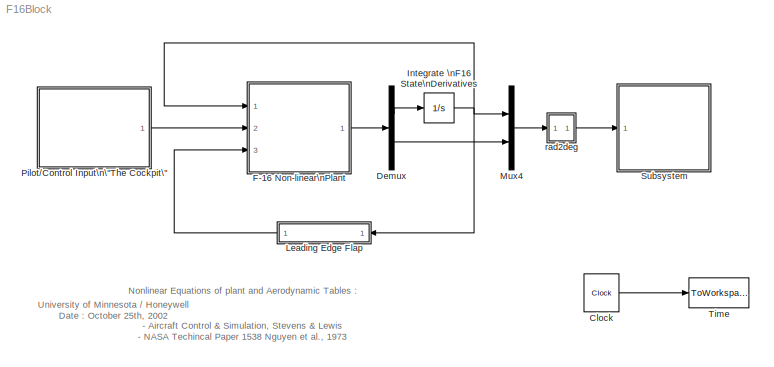
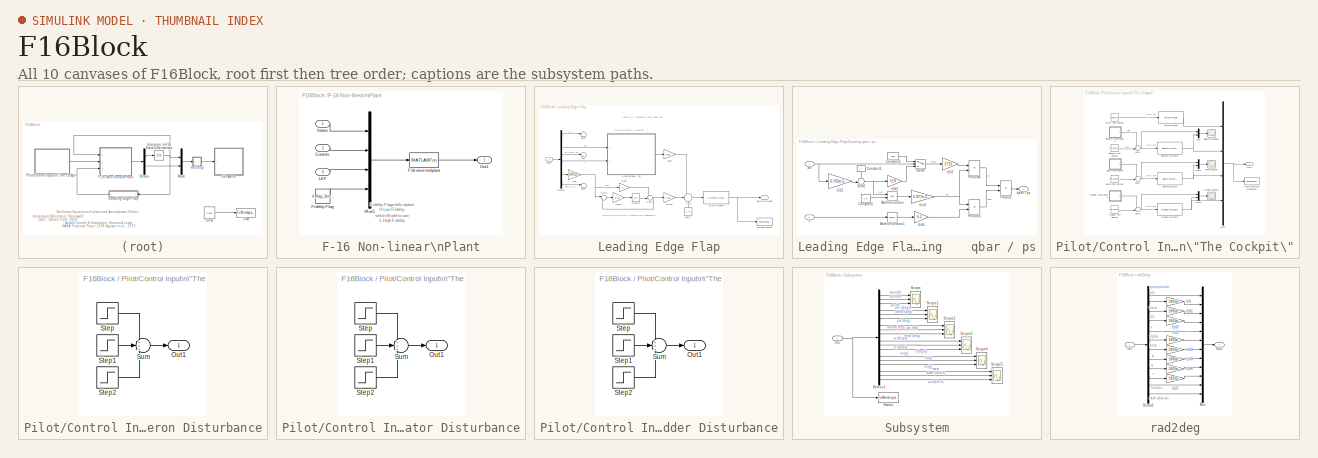
[diagram: thumbnail index - all 10 canvases of the model, root first then tree order]
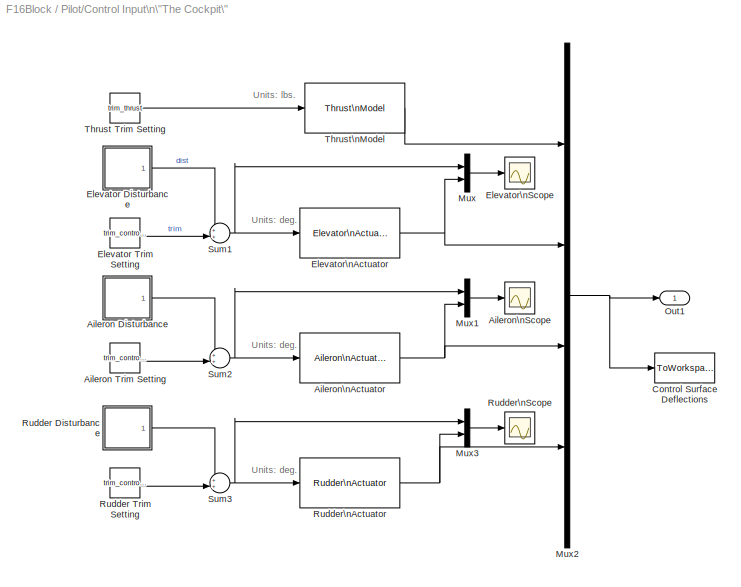
MODEL F16Block
KIND model
CONFIG AbsTol = auto
CONFIG FixedStep = delta_T
CONFIG MaxStep = auto
CONFIG MinStep = auto
CONFIG RelTol = 1e-3
CONFIG Solver = ode5
CONFIG SolverMode = Auto
CONFIG StartTime = 0.0
CONFIG StopTime = 30
BLOCK [Clock] Clock
  Decimation = 50
  DisplayTime = on
BLOCK [Demux] Demux
  Outputs = [12 6]
  Ports = [1, 2]
BLOCK [SubSystem] F-16 Non-linear\nPlant
  MaskDisplay = image(imread('f16thumb.jpg'))
  MaskIconFrame = on
  MaskIconOpaque = on
  MaskIconRotate = none
  MaskIconUnits = autoscale
  Ports = [3, 1]
  TreatAsAtomicUnit = off
BLOCK [Inport] F-16 Non-linear\nPlant/Controls
  Port = 2
BLOCK [MATLABFcn] F-16 Non-linear\nPlant/F16 nlsim\nnlplant
  MATLABFcn = nlplant
  OutputDimensions = 18
  OutputSignalType = real
BLOCK [Constant] F-16 Non-linear\nPlant/Fidelity Flag
  Value = fi_flag_Simulink
BLOCK [Inport] F-16 Non-linear\nPlant/LEF
  Port = 3
BLOCK [Mux] F-16 Non-linear\nPlant/Mux5
  DisplayOption = bar
  Inputs = [12 4 1 1]
  Ports = [4, 1]
BLOCK [Outport] F-16 Non-linear\nPlant/Out1
BLOCK [Inport] F-16 Non-linear\nPlant/States
BLOCK [Integrator] Integrate \nF16 State\nDerivatives
  InitialCondition = trim_state
  Ports = [1, 1]
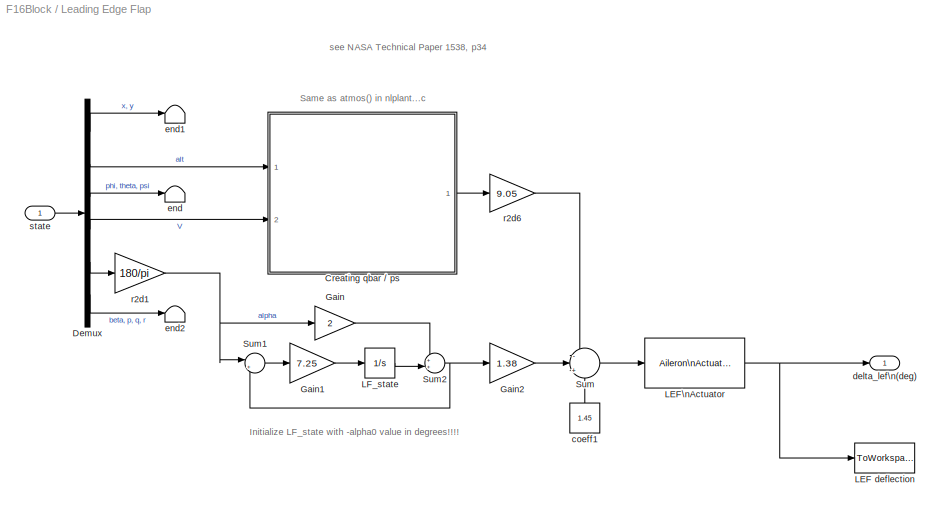
BLOCK [SubSystem] Leading Edge Flap
  Ports = [1, 1]
  TreatAsAtomicUnit = off
BLOCK [SubSystem] Leading Edge Flap/Creating    qbar // ps
  Ports = [2, 1]
  TreatAsAtomicUnit = off
BLOCK [Constant] Leading Edge Flap/Creating    qbar // ps/Constant2
BLOCK [Constant] Leading Edge Flap/Creating    qbar // ps/Constant3
  Value = 390
BLOCK [Constant] Leading Edge Flap/Creating    qbar // ps/Constant6
  Value = 4.14
BLOCK [Math] Leading Edge Flap/Creating    qbar // ps/Math\nFunction
  Operator = pow
  Ports = [2, 1]
BLOCK [Math] Leading Edge Flap/Creating    qbar // ps/Math\nFunction1
  Operator = square
  Ports = [1, 1]
BLOCK [Product] Leading Edge Flap/Creating    qbar // ps/Product
  Inputs = /*
  Ports = [2, 1]
BLOCK [Product] Leading Edge Flap/Creating    qbar // ps/Product5
  Inputs = **
  Ports = [2, 1]
BLOCK [Product] Leading Edge Flap/Creating    qbar // ps/Product6
  Inputs = **
  Ports = [2, 1]
BLOCK [Sum] Leading Edge Flap/Creating    qbar // ps/Sum3
  IconShape = round
  Inputs = +-|
  Ports = [2, 1]
BLOCK [Switch] Leading Edge Flap/Creating    qbar // ps/Switch
  Threshold = 35000
BLOCK [Inport] Leading Edge Flap/Creating    qbar // ps/V
  Port = 2
BLOCK [Inport] Leading Edge Flap/Creating    qbar // ps/alt
BLOCK [Outport] Leading Edge Flap/Creating    qbar // ps/qbar // ps
BLOCK [Gain] Leading Edge Flap/Creating    qbar // ps/r2d2
  Gain = 0.703e-5
BLOCK [Gain] Leading Edge Flap/Creating    qbar // ps/r2d3
  Gain = 519
BLOCK [Gain] Leading Edge Flap/Creating    qbar // ps/r2d4
  Gain = 0.5
BLOCK [Gain] Leading Edge Flap/Creating    qbar // ps/r2d5
  Gain = 1715
BLOCK [Gain] Leading Edge Flap/Creating    qbar // ps/rho0
  Gain = 2.377e-3
BLOCK [Demux] Leading Edge Flap/Demux
  Outputs = [2,1,3,1,1,4]
  Ports = [1, 6]
BLOCK [Gain] Leading Edge Flap/Gain
  Gain = 2
BLOCK [Gain] Leading Edge Flap/Gain1
  Gain = 7.25
BLOCK [Gain] Leading Edge Flap/Gain2
  Gain = 1.38
BLOCK [ToWorkspace] Leading Edge Flap/LEF deflection
  Decimation = 100
  MaxDataPoints = inf
  SampleTime = -1
  SaveFormat = Array
  VariableName = d_LF
BLOCK [Reference] Leading Edge Flap/LEF\nActuator  REF=F16_Actuator_Library/Aileron\nActuator
  DataTypeOverride = UseLocalSettings
  MinMaxOverflowLogging = UseLocalSettings
  Permissions = ReadWrite
  Ports = [1, 1]
  RTWFcnNameOpts = Auto
  RTWFileNameOpts = Auto
  RTWSystemCode = Auto
  ShowPortLabels = on
  SimViewingDevice = off
  SourceBlock = F16_Actuator_Library/Aileron\nActuator
  SourceType = SubSystem
  TreatAsAtomicUnit = off
BLOCK [Integrator] Leading Edge Flap/LF_state
  InitialCondition = -trim_state(8)*180/pi
  Ports = [1, 1]
BLOCK [Sum] Leading Edge Flap/Sum
  IconShape = round
  Inputs = -|+|+
  Ports = [3, 1]
BLOCK [Sum] Leading Edge Flap/Sum1
  IconShape = round
  Inputs = |+-
  Ports = [2, 1]
BLOCK [Sum] Leading Edge Flap/Sum2
  IconShape = round
  Inputs = ++|
  Ports = [2, 1]
BLOCK [Constant] Leading Edge Flap/coeff1
  Value = 1.45
BLOCK [Outport] Leading Edge Flap/delta_lef\n(deg)
BLOCK [Terminator] Leading Edge Flap/end
BLOCK [Terminator] Leading Edge Flap/end1
BLOCK [Terminator] Leading Edge Flap/end2
BLOCK [Gain] Leading Edge Flap/r2d1
  Gain = 180/pi
BLOCK [Gain] Leading Edge Flap/r2d6
  Gain = 9.05
BLOCK [Inport] Leading Edge Flap/state
BLOCK [Mux] Mux4
  DisplayOption = bar
  Inputs = 2
  Ports = [2, 1]
BLOCK [SubSystem] Pilot//Control Input\n\"The Cockpit\"
  MaskDisplay = image(imread('f16cockpit.jpg'))
  MaskIconFrame = on
  MaskIconOpaque = on
  MaskIconRotate = none
  MaskIconUnits = autoscale
  Ports = [0, 1]
  TreatAsAtomicUnit = off
BLOCK [SubSystem] Pilot//Control Input\n\"The Cockpit\"/Aileron Disturbance
  Ports = [0, 1]
  TreatAsAtomicUnit = off
BLOCK [Outport] Pilot//Control Input\n\"The Cockpit\"/Aileron Disturbance/Out1
BLOCK [Step] Pilot//Control Input\n\"The Cockpit\"/Aileron Disturbance/Step
  After = DisAil_1
  SampleTime = 0
BLOCK [Step] Pilot//Control Input\n\"The Cockpit\"/Aileron Disturbance/Step1
  After = DisAil_2
  SampleTime = 0
  Time = 3
BLOCK [Step] Pilot//Control Input\n\"The Cockpit\"/Aileron Disturbance/Step2
  After = DisAil_3
  SampleTime = 0
  Time = 5
BLOCK [Sum] Pilot//Control Input\n\"The Cockpit\"/Aileron Disturbance/Sum
  IconShape = round
  Inputs = +++
  Ports = [3, 1]
BLOCK [Constant] Pilot//Control Input\n\"The Cockpit\"/Aileron Trim Setting
  Value = trim_control(2)
BLOCK [Reference] Pilot//Control Input\n\"The Cockpit\"/Aileron\nActuator  REF=F16_Actuator_Library/Aileron\nActuator
  DataTypeOverride = UseLocalSettings
  MinMaxOverflowLogging = UseLocalSettings
  Permissions = ReadWrite
  Ports = [1, 1]
  RTWFcnNameOpts = Auto
  RTWFileNameOpts = Auto
  RTWSystemCode = Auto
  ShowPortLabels = on
  SimViewingDevice = off
  SourceBlock = F16_Actuator_Library/Aileron\nActuator
  SourceType = SubSystem
  TreatAsAtomicUnit = off
BLOCK [Scope] Pilot//Control Input\n\"The Cockpit\"/Aileron\nScope
  DataFormat = StructureWithTime
  NumInputPorts = 1
  Ports = [1]
  SaveName = ScopeData7
  TimeRange = 30
BLOCK [ToWorkspace] Pilot//Control Input\n\"The Cockpit\"/Control Surface Deflections
  Decimation = 100
  MaxDataPoints = inf
  SampleTime = -1
  SaveFormat = Array
  VariableName = surfaces
BLOCK [SubSystem] Pilot//Control Input\n\"The Cockpit\"/Elevator Disturbance
  Ports = [0, 1]
  TreatAsAtomicUnit = off
BLOCK [Outport] Pilot//Control Input\n\"The Cockpit\"/Elevator Disturbance/Out1
BLOCK [Step] Pilot//Control Input\n\"The Cockpit\"/Elevator Disturbance/Step
  After = DisEle_1
  SampleTime = 0
BLOCK [Step] Pilot//Control Input\n\"The Cockpit\"/Elevator Disturbance/Step1
  After = DisEle_2
  SampleTime = 0
  Time = 3
BLOCK [Step] Pilot//Control Input\n\"The Cockpit\"/Elevator Disturbance/Step2
  After = DisEle_3
  SampleTime = 0
  Time = 5
BLOCK [Sum] Pilot//Control Input\n\"The Cockpit\"/Elevator Disturbance/Sum
  IconShape = round
  Inputs = +++
  Ports = [3, 1]
BLOCK [Constant] Pilot//Control Input\n\"The Cockpit\"/Elevator Trim Setting
  Value = trim_control(1)
  VectorParams1D = off
BLOCK [Reference] Pilot//Control Input\n\"The Cockpit\"/Elevator\nActuator  REF=F16_Actuator_Library/Elevator\nActuator
  DataTypeOverride = UseLocalSettings
  MinMaxOverflowLogging = UseLocalSettings
  Permissions = ReadWrite
  Ports = [1, 1]
  RTWFcnNameOpts = Auto
  RTWFileNameOpts = Auto
  RTWSystemCode = Auto
  ShowPortLabels = on
  SimViewingDevice = off
  SourceBlock = F16_Actuator_Library/Elevator\nActuator
  SourceType = SubSystem
  TreatAsAtomicUnit = off
BLOCK [Scope] Pilot//Control Input\n\"The Cockpit\"/Elevator\nScope
  DataFormat = StructureWithTime
  LimitDataPoints = off
  NumInputPorts = 1
  Ports = [1]
  SaveName = ScopeData6
  TimeRange = 5
  YMax = -2.33766
  YMin = -2.58372
BLOCK [Mux] Pilot//Control Input\n\"The Cockpit\"/Mux
  DisplayOption = bar
  Inputs = 2
  Ports = [2, 1]
BLOCK [Mux] Pilot//Control Input\n\"The Cockpit\"/Mux1
  DisplayOption = bar
  Inputs = 2
  Ports = [2, 1]
BLOCK [Mux] Pilot//Control Input\n\"The Cockpit\"/Mux2
  DisplayOption = bar
  Ports = [4, 1]
BLOCK [Mux] Pilot//Control Input\n\"The Cockpit\"/Mux3
  DisplayOption = bar
  Inputs = 2
  Ports = [2, 1]
BLOCK [Outport] Pilot//Control Input\n\"The Cockpit\"/Out1
BLOCK [SubSystem] Pilot//Control Input\n\"The Cockpit\"/Rudder Disturbance
  Ports = [0, 1]
  TreatAsAtomicUnit = off
BLOCK [Outport] Pilot//Control Input\n\"The Cockpit\"/Rudder Disturbance/Out1
BLOCK [Step] Pilot//Control Input\n\"The Cockpit\"/Rudder Disturbance/Step
  After = DisRud_1
  SampleTime = 0
BLOCK [Step] Pilot//Control Input\n\"The Cockpit\"/Rudder Disturbance/Step1
  After = DisRud_2
  SampleTime = 0
  Time = 3
BLOCK [Step] Pilot//Control Input\n\"The Cockpit\"/Rudder Disturbance/Step2
  After = DisRud_3
  SampleTime = 0
  Time = 5
BLOCK [Sum] Pilot//Control Input\n\"The Cockpit\"/Rudder Disturbance/Sum
  IconShape = round
  Inputs = +++
  Ports = [3, 1]
BLOCK [Constant] Pilot//Control Input\n\"The Cockpit\"/Rudder Trim Setting
  Value = trim_control(3)
BLOCK [Reference] Pilot//Control Input\n\"The Cockpit\"/Rudder\nActuator  REF=F16_Actuator_Library/Rudder\nActuator
  DataTypeOverride = UseLocalSettings
  MinMaxOverflowLogging = UseLocalSettings
  Permissions = ReadWrite
  Ports = [1, 1]
  RTWFcnNameOpts = Auto
  RTWFileNameOpts = Auto
  RTWSystemCode = Auto
  ShowPortLabels = on
  SimViewingDevice = off
  SourceBlock = F16_Actuator_Library/Rudder\nActuator
  SourceType = SubSystem
  TreatAsAtomicUnit = off
BLOCK [Scope] Pilot//Control Input\n\"The Cockpit\"/Rudder\nScope
  DataFormat = StructureWithTime
  NumInputPorts = 1
  Ports = [1]
  SaveName = ScopeData8
BLOCK [Sum] Pilot//Control Input\n\"The Cockpit\"/Sum1
  IconShape = round
  Inputs = ++|
  Ports = [2, 1]
BLOCK [Sum] Pilot//Control Input\n\"The Cockpit\"/Sum2
  IconShape = round
  Inputs = ++|
  Ports = [2, 1]
BLOCK [Sum] Pilot//Control Input\n\"The Cockpit\"/Sum3
  IconShape = round
  Inputs = ++|
  Ports = [2, 1]
BLOCK [Constant] Pilot//Control Input\n\"The Cockpit\"/Thrust Trim Setting
  Value = trim_thrust
BLOCK [Reference] Pilot//Control Input\n\"The Cockpit\"/Thrust\nModel  REF=F16_Actuator_Library/Thrust\nModel
  AncestorBlock = F16_Actuator_Library/Rudder\nActuator
  DataTypeOverride = UseLocalSettings
  MinMaxOverflowLogging = UseLocalSettings
  Permissions = ReadWrite
  Ports = [1, 1]
  RTWFcnNameOpts = Auto
  RTWFileNameOpts = Auto
  RTWSystemCode = Auto
  ShowPortLabels = on
  SimViewingDevice = off
  SourceBlock = F16_Actuator_Library/Thrust\nModel
  SourceType = SubSystem
  TreatAsAtomicUnit = off
BLOCK [SubSystem] Subsystem
  MaskDisplay = image(imread('f16output.jpg'))
  MaskIconFrame = on
  MaskIconOpaque = on
  MaskIconRotate = none
  MaskIconUnits = pixels
  Ports = [1]
  TreatAsAtomicUnit = off
BLOCK [Demux] Subsystem/Demux1
  Outputs = 18
  Ports = [1, 18]
BLOCK [Inport] Subsystem/In1
BLOCK [Scope] Subsystem/Scope
  DataFormat = StructureWithTime
  Decimation = 20
  LimitDataPoints = off
  NumInputPorts = 3
  Ports = [3]
  YMax = 13700~8.75e-11~13320
  YMin = 12100~6e-11~13235
BLOCK [Scope] Subsystem/Scope1
  DataFormat = StructureWithTime
  Decimation = 20
  LimitDataPoints = off
  NumInputPorts = 3
  Ports = [3]
  SaveName = ScopeData1
  TimeRange = 10
  YMax = 0.143~3.21105~-0.245
  YMin = 0.126~3.2103~-0.32
BLOCK [Scope] Subsystem/Scope2
  DataFormat = StructureWithTime
  Decimation = 20
  LimitDataPoints = off
  NumInputPorts = 3
  Ports = [3]
  SaveName = ScopeData2
  YMax = 484.5~0.1255~7.5e-16
  YMin = 478~0.12~2e-16
  ZoomMode = xonly
BLOCK [Scope] Subsystem/Scope3
  DataFormat = StructureWithTime
  Decimation = 20
  LimitDataPoints = off
  NumInputPorts = 3
  Ports = [3]
  SaveName = ScopeData3
  YMax = 5~5~5
  YMin = -5~-5~-5
BLOCK [Scope] Subsystem/Scope4
  DataFormat = StructureWithTime
  Decimation = 20
  LimitDataPoints = off
  NumInputPorts = 3
  Ports = [3]
  SaveName = ScopeData4
  YMax = 5~5~5
  YMin = -5~-5~-5
BLOCK [Scope] Subsystem/Scope5
  DataFormat = StructureWithTime
  NumInputPorts = 3
  Ports = [3]
  SaveName = ScopeData5
  YMax = 0.459182~241.108~1.05
  YMin = 0.459181~241.107~0.95
BLOCK [ToWorkspace] Subsystem/States
  Decimation = 100
  MaxDataPoints = inf
  SampleTime = -1
  SaveFormat = Array
  VariableName = y_sim
BLOCK [ToWorkspace] Time
  Decimation = 100
  MaxDataPoints = inf
  SampleTime = -1
  SaveFormat = Array
  VariableName = T
BLOCK [SubSystem] rad2deg
  Ports = [1, 1]
  TreatAsAtomicUnit = off
BLOCK [Demux] rad2deg/Demux1
  Outputs = [3 1 1 1 1 1 1 1 1 1 3 3]
  Ports = [1, 12]
BLOCK [Inport] rad2deg/In1
BLOCK [Mux] rad2deg/Mux
  DisplayOption = bar
  Inputs = [3 1 1 1 1 1 1 1 1 1 3 3]
  Ports = [12, 1]
BLOCK [Outport] rad2deg/Out1
BLOCK [Gain] rad2deg/r2d
  Gain = 180/pi
BLOCK [Gain] rad2deg/r2d1
  Gain = 180/pi
BLOCK [Gain] rad2deg/r2d2
  Gain = 180/pi
BLOCK [Gain] rad2deg/r2d3
  Gain = 180/pi
BLOCK [Gain] rad2deg/r2d4
  Gain = 180/pi
BLOCK [Gain] rad2deg/r2d5
  Gain = 180/pi
BLOCK [Gain] rad2deg/r2d6
  Gain = 180/pi
BLOCK [Gain] rad2deg/r2d7
  Gain = 180/pi
ANNOTATION (root): Nonlinear Equations of plant and Aerodynamic Tables :\n- Aircraft Control & Simulation, Stevens & Lewis\n- NASA Techincal Paper 1538 Nguyen et al., 1973
ANNOTATION (root): University of Minnesota / Honeywell\nDate : October 25th, 2002
ANNOTATION F-16 Non-linear\nPlant: Fidelity Flage tells nlplant \nwhich Model to use:\n0: Low Fidelity\n1: High Fidelity
ANNOTATION Leading Edge Flap: Initialize LF_state with -alpha0 value in degrees!!!!
ANNOTATION Leading Edge Flap: Same as atmos() in nlplant...c
ANNOTATION Leading Edge Flap: see NASA Technical Paper 1538, p34
ANNOTATION Pilot//Control Input\n\"The Cockpit\": Units: deg.
ANNOTATION Pilot//Control Input\n\"The Cockpit\": Units: lbs.
ANNOTATION rad2deg: alpha
ANNOTATION rad2deg: beta
ANNOTATION rad2deg: mach,qbar,ps
ANNOTATION rad2deg: npos,epos,alt
ANNOTATION rad2deg: nx,ny,nz
ANNOTATION rad2deg: p
ANNOTATION rad2deg: phi
ANNOTATION rad2deg: psi
ANNOTATION rad2deg: q
ANNOTATION rad2deg: r
ANNOTATION rad2deg: theta
ANNOTATION rad2deg: v
LINE Clock:1 -> Time:1
LINE Demux:1 -> Integrate \nF16 State\nDerivatives:1
LINE Demux:2 -> Mux4:2
LINE F-16 Non-linear\nPlant/Controls:1 -> F-16 Non-linear\nPlant/Mux5:2
LINE F-16 Non-linear\nPlant/F16 nlsim\nnlplant:1 -> F-16 Non-linear\nPlant/Out1:1
LINE F-16 Non-linear\nPlant/Fidelity Flag:1 -> F-16 Non-linear\nPlant/Mux5:4
LINE F-16 Non-linear\nPlant/LEF:1 -> F-16 Non-linear\nPlant/Mux5:3
LINE F-16 Non-linear\nPlant/Mux5:1 -> F-16 Non-linear\nPlant/F16 nlsim\nnlplant:1
LINE F-16 Non-linear\nPlant/States:1 -> F-16 Non-linear\nPlant/Mux5:1
LINE F-16 Non-linear\nPlant:1 -> Demux:1
NET Integrate \nF16 State\nDerivatives:1 -> F-16 Non-linear\nPlant:1, Leading Edge Flap:1, Mux4:1
LINE Leading Edge Flap/Creating    qbar // ps/Constant2:1 -> Leading Edge Flap/Creating    qbar // ps/Sum3:1
LINE Leading Edge Flap/Creating    qbar // ps/Constant3:1 -> Leading Edge Flap/Creating    qbar // ps/Switch:1
LINE Leading Edge Flap/Creating    qbar // ps/Constant6:1 -> Leading Edge Flap/Creating    qbar // ps/Math\nFunction:2
LINE Leading Edge Flap/Creating    qbar // ps/Math\nFunction1:1 -> Leading Edge Flap/Creating    qbar // ps/r2d4:1
LINE Leading Edge Flap/Creating    qbar // ps/Math\nFunction:1 -> Leading Edge Flap/Creating    qbar // ps/rho0:1
LINE Leading Edge Flap/Creating    qbar // ps/Product5:1 -> Leading Edge Flap/Creating    qbar // ps/Product:2
LINE Leading Edge Flap/Creating    qbar // ps/Product6:1 -> Leading Edge Flap/Creating    qbar // ps/Product:1
LINE Leading Edge Flap/Creating    qbar // ps/Product:1 -> Leading Edge Flap/Creating    qbar // ps/qbar // ps:1
NET Leading Edge Flap/Creating    qbar // ps/Sum3:1 -> Leading Edge Flap/Creating    qbar // ps/Math\nFunction:1, Leading Edge Flap/Creating    qbar // ps/r2d3:1
LINE Leading Edge Flap/Creating    qbar // ps/Switch:1 -> Leading Edge Flap/Creating    qbar // ps/r2d5:1
LINE Leading Edge Flap/Creating    qbar // ps/V:1 -> Leading Edge Flap/Creating    qbar // ps/Math\nFunction1:1
NET Leading Edge Flap/Creating    qbar // ps/alt:1 -> Leading Edge Flap/Creating    qbar // ps/Switch:2, Leading Edge Flap/Creating    qbar // ps/r2d2:1
LINE Leading Edge Flap/Creating    qbar // ps/r2d2:1 -> Leading Edge Flap/Creating    qbar // ps/Sum3:2
LINE Leading Edge Flap/Creating    qbar // ps/r2d3:1 -> Leading Edge Flap/Creating    qbar // ps/Switch:3
LINE Leading Edge Flap/Creating    qbar // ps/r2d4:1 -> Leading Edge Flap/Creating    qbar // ps/Product5:2
LINE Leading Edge Flap/Creating    qbar // ps/r2d5:1 -> Leading Edge Flap/Creating    qbar // ps/Product6:1
NET Leading Edge Flap/Creating    qbar // ps/rho0:1 -> Leading Edge Flap/Creating    qbar // ps/Product5:1, Leading Edge Flap/Creating    qbar // ps/Product6:2
LINE Leading Edge Flap/Creating    qbar // ps:1 -> Leading Edge Flap/r2d6:1
LINE Leading Edge Flap/Demux:1 -> Leading Edge Flap/end1:1
LINE Leading Edge Flap/Demux:2 -> Leading Edge Flap/Creating    qbar // ps:1
LINE Leading Edge Flap/Demux:3 -> Leading Edge Flap/end:1
LINE Leading Edge Flap/Demux:4 -> Leading Edge Flap/Creating    qbar // ps:2
LINE Leading Edge Flap/Demux:5 -> Leading Edge Flap/r2d1:1
LINE Leading Edge Flap/Demux:6 -> Leading Edge Flap/end2:1
LINE Leading Edge Flap/Gain1:1 -> Leading Edge Flap/LF_state:1
LINE Leading Edge Flap/Gain2:1 -> Leading Edge Flap/Sum:2
LINE Leading Edge Flap/Gain:1 -> Leading Edge Flap/Sum2:1
NET Leading Edge Flap/LEF\nActuator:1 -> Leading Edge Flap/LEF deflection:1, Leading Edge Flap/delta_lef\n(deg):1
LINE Leading Edge Flap/LF_state:1 -> Leading Edge Flap/Sum2:2
LINE Leading Edge Flap/Sum1:1 -> Leading Edge Flap/Gain1:1
NET Leading Edge Flap/Sum2:1 -> Leading Edge Flap/Gain2:1, Leading Edge Flap/Sum1:2
LINE Leading Edge Flap/Sum:1 -> Leading Edge Flap/LEF\nActuator:1
LINE Leading Edge Flap/coeff1:1 -> Leading Edge Flap/Sum:3
NET Leading Edge Flap/r2d1:1 -> Leading Edge Flap/Gain:1, Leading Edge Flap/Sum1:1
LINE Leading Edge Flap/r2d6:1 -> Leading Edge Flap/Sum:1
LINE Leading Edge Flap/state:1 -> Leading Edge Flap/Demux:1
LINE Leading Edge Flap:1 -> F-16 Non-linear\nPlant:3
LINE Mux4:1 -> rad2deg:1
LINE Pilot//Control Input\n\"The Cockpit\"/Aileron Disturbance/Step1:1 -> Pilot//Control Input\n\"The Cockpit\"/Aileron Disturbance/Sum:2
LINE Pilot//Control Input\n\"The Cockpit\"/Aileron Disturbance/Step2:1 -> Pilot//Control Input\n\"The Cockpit\"/Aileron Disturbance/Sum:3
LINE Pilot//Control Input\n\"The Cockpit\"/Aileron Disturbance/Step:1 -> Pilot//Control Input\n\"The Cockpit\"/Aileron Disturbance/Sum:1
LINE Pilot//Control Input\n\"The Cockpit\"/Aileron Disturbance/Sum:1 -> Pilot//Control Input\n\"The Cockpit\"/Aileron Disturbance/Out1:1
LINE Pilot//Control Input\n\"The Cockpit\"/Aileron Disturbance:1 -> Pilot//Control Input\n\"The Cockpit\"/Sum2:1
LINE Pilot//Control Input\n\"The Cockpit\"/Aileron Trim Setting:1 -> Pilot//Control Input\n\"The Cockpit\"/Sum2:2
NET Pilot//Control Input\n\"The Cockpit\"/Aileron\nActuator:1 -> Pilot//Control Input\n\"The Cockpit\"/Mux1:2, Pilot//Control Input\n\"The Cockpit\"/Mux2:3
LINE Pilot//Control Input\n\"The Cockpit\"/Elevator Disturbance/Step1:1 -> Pilot//Control Input\n\"The Cockpit\"/Elevator Disturbance/Sum:2
LINE Pilot//Control Input\n\"The Cockpit\"/Elevator Disturbance/Step2:1 -> Pilot//Control Input\n\"The Cockpit\"/Elevator Disturbance/Sum:3
LINE Pilot//Control Input\n\"The Cockpit\"/Elevator Disturbance/Step:1 -> Pilot//Control Input\n\"The Cockpit\"/Elevator Disturbance/Sum:1
LINE Pilot//Control Input\n\"The Cockpit\"/Elevator Disturbance/Sum:1 -> Pilot//Control Input\n\"The Cockpit\"/Elevator Disturbance/Out1:1
LINE Pilot//Control Input\n\"The Cockpit\"/Elevator Disturbance:1 -> Pilot//Control Input\n\"The Cockpit\"/Sum1:1
LINE Pilot//Control Input\n\"The Cockpit\"/Elevator Trim Setting:1 -> Pilot//Control Input\n\"The Cockpit\"/Sum1:2
NET Pilot//Control Input\n\"The Cockpit\"/Elevator\nActuator:1 -> Pilot//Control Input\n\"The Cockpit\"/Mux2:2, Pilot//Control Input\n\"The Cockpit\"/Mux:2
LINE Pilot//Control Input\n\"The Cockpit\"/Mux1:1 -> Pilot//Control Input\n\"The Cockpit\"/Aileron\nScope:1
NET Pilot//Control Input\n\"The Cockpit\"/Mux2:1 -> Pilot//Control Input\n\"The Cockpit\"/Control Surface Deflections:1, Pilot//Control Input\n\"The Cockpit\"/Out1:1
LINE Pilot//Control Input\n\"The Cockpit\"/Mux3:1 -> Pilot//Control Input\n\"The Cockpit\"/Rudder\nScope:1
LINE Pilot//Control Input\n\"The Cockpit\"/Mux:1 -> Pilot//Control Input\n\"The Cockpit\"/Elevator\nScope:1
LINE Pilot//Control Input\n\"The Cockpit\"/Rudder Disturbance/Step1:1 -> Pilot//Control Input\n\"The Cockpit\"/Rudder Disturbance/Sum:2
LINE Pilot//Control Input\n\"The Cockpit\"/Rudder Disturbance/Step2:1 -> Pilot//Control Input\n\"The Cockpit\"/Rudder Disturbance/Sum:3
LINE Pilot//Control Input\n\"The Cockpit\"/Rudder Disturbance/Step:1 -> Pilot//Control Input\n\"The Cockpit\"/Rudder Disturbance/Sum:1
LINE Pilot//Control Input\n\"The Cockpit\"/Rudder Disturbance/Sum:1 -> Pilot//Control Input\n\"The Cockpit\"/Rudder Disturbance/Out1:1
LINE Pilot//Control Input\n\"The Cockpit\"/Rudder Disturbance:1 -> Pilot//Control Input\n\"The Cockpit\"/Sum3:1
LINE Pilot//Control Input\n\"The Cockpit\"/Rudder Trim Setting:1 -> Pilot//Control Input\n\"The Cockpit\"/Sum3:2
NET Pilot//Control Input\n\"The Cockpit\"/Rudder\nActuator:1 -> Pilot//Control Input\n\"The Cockpit\"/Mux2:4, Pilot//Control Input\n\"The Cockpit\"/Mux3:2
NET Pilot//Control Input\n\"The Cockpit\"/Sum1:1 -> Pilot//Control Input\n\"The Cockpit\"/Elevator\nActuator:1, Pilot//Control Input\n\"The Cockpit\"/Mux:1
NET Pilot//Control Input\n\"The Cockpit\"/Sum2:1 -> Pilot//Control Input\n\"The Cockpit\"/Aileron\nActuator:1, Pilot//Control Input\n\"The Cockpit\"/Mux1:1
NET Pilot//Control Input\n\"The Cockpit\"/Sum3:1 -> Pilot//Control Input\n\"The Cockpit\"/Mux3:1, Pilot//Control Input\n\"The Cockpit\"/Rudder\nActuator:1
LINE Pilot//Control Input\n\"The Cockpit\"/Thrust Trim Setting:1 -> Pilot//Control Input\n\"The Cockpit\"/Thrust\nModel:1
LINE Pilot//Control Input\n\"The Cockpit\"/Thrust\nModel:1 -> Pilot//Control Input\n\"The Cockpit\"/Mux2:1
LINE Pilot//Control Input\n\"The Cockpit\":1 -> F-16 Non-linear\nPlant:2
LINE Subsystem/Demux1:1 -> Subsystem/Scope:1
LINE Subsystem/Demux1:10 -> Subsystem/Scope3:1
LINE Subsystem/Demux1:11 -> Subsystem/Scope3:2
LINE Subsystem/Demux1:12 -> Subsystem/Scope3:3
LINE Subsystem/Demux1:13 -> Subsystem/Scope4:1
LINE Subsystem/Demux1:14 -> Subsystem/Scope4:2
LINE Subsystem/Demux1:15 -> Subsystem/Scope4:3
LINE Subsystem/Demux1:16 -> Subsystem/Scope5:1
LINE Subsystem/Demux1:17 -> Subsystem/Scope5:2
LINE Subsystem/Demux1:18 -> Subsystem/Scope5:3
LINE Subsystem/Demux1:2 -> Subsystem/Scope:2
LINE Subsystem/Demux1:3 -> Subsystem/Scope:3
LINE Subsystem/Demux1:4 -> Subsystem/Scope1:1
LINE Subsystem/Demux1:5 -> Subsystem/Scope1:2
LINE Subsystem/Demux1:6 -> Subsystem/Scope1:3
LINE Subsystem/Demux1:7 -> Subsystem/Scope2:1
LINE Subsystem/Demux1:8 -> Subsystem/Scope2:2
LINE Subsystem/Demux1:9 -> Subsystem/Scope2:3
NET Subsystem/In1:1 -> Subsystem/Demux1:1, Subsystem/States:1
LINE rad2deg/Demux1:1 -> rad2deg/Mux:1
LINE rad2deg/Demux1:10 -> rad2deg/r2d7:1
LINE rad2deg/Demux1:11 -> rad2deg/Mux:11
LINE rad2deg/Demux1:12 -> rad2deg/Mux:12
LINE rad2deg/Demux1:2 -> rad2deg/r2d:1
LINE rad2deg/Demux1:3 -> rad2deg/r2d1:1
LINE rad2deg/Demux1:4 -> rad2deg/r2d2:1
LINE rad2deg/Demux1:5 -> rad2deg/Mux:5
LINE rad2deg/Demux1:6 -> rad2deg/r2d3:1
LINE rad2deg/Demux1:7 -> rad2deg/r2d4:1
LINE rad2deg/Demux1:8 -> rad2deg/r2d5:1
LINE rad2deg/Demux1:9 -> rad2deg/r2d6:1
LINE rad2deg/In1:1 -> rad2deg/Demux1:1
LINE rad2deg/Mux:1 -> rad2deg/Out1:1
LINE rad2deg/r2d1:1 -> rad2deg/Mux:3
LINE rad2deg/r2d2:1 -> rad2deg/Mux:4
LINE rad2deg/r2d3:1 -> rad2deg/Mux:6
LINE rad2deg/r2d4:1 -> rad2deg/Mux:7
LINE rad2deg/r2d5:1 -> rad2deg/Mux:8
LINE rad2deg/r2d6:1 -> rad2deg/Mux:9
LINE rad2deg/r2d7:1 -> rad2deg/Mux:10
LINE rad2deg/r2d:1 -> rad2deg/Mux:2
LINE rad2deg:1 -> Subsystem:1
note: NET lines group one-source signal fan-out (src -> all destinations, sorted); 1:1 wires keep LINE
